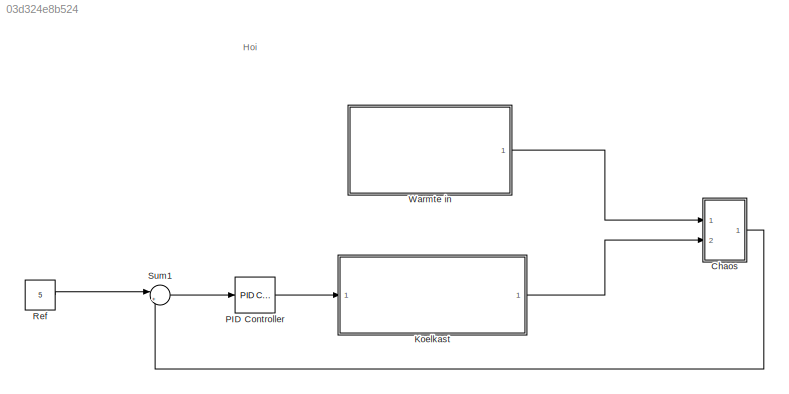
MODEL slx_03d324e8b524
KIND model
CONFIG AbsTol = auto
CONFIG EnableMultiTasking = off
CONFIG FixedStep = auto
CONFIG MaxStep = auto
CONFIG MinStep = auto
CONFIG RelTol = 1e-3
CONFIG SampleTimeConstraint = Unconstrained
CONFIG SolverName = ode4
CONFIG StartTime = 0.0
CONFIG StopTime = 10.0
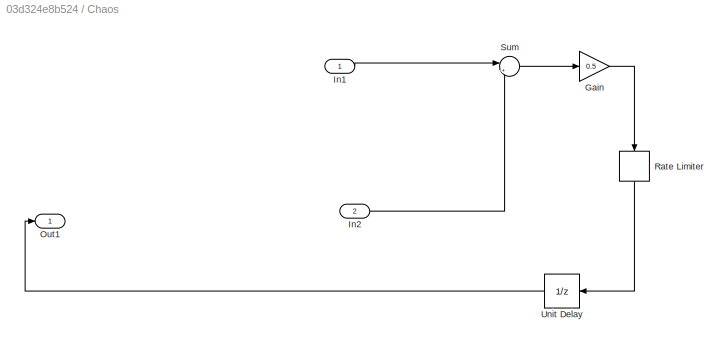
BLOCK [SubSystem] Chaos
  Ports = [2, 1]
  RequestExecContextInheritance = off
BLOCK [Gain] Chaos/Gain
  Gain = 0.5
BLOCK [Inport] Chaos/In1
BLOCK [Inport] Chaos/In2
  Port = 2
BLOCK [Outport] Chaos/Out1
BLOCK [RateLimiter] Chaos/Rate Limiter
  FallingSlewLimit = -0.2
  NameLocation = left
  RisingSlewLimit = 0.2
  SampleTimeMode = inherited
BLOCK [Sum] Chaos/Sum
  Inputs = |++
  Ports = [2, 1]
BLOCK [UnitDelay] Chaos/Unit Delay
  HasFrameUpgradeWarning = on
  InitialCondition = 11
  NameLocation = top
  SampleTime = -1
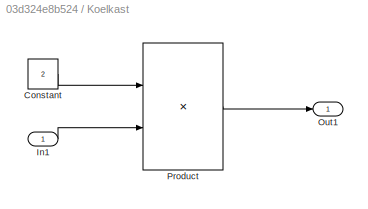
BLOCK [SubSystem] Koelkast
  Ports = [1, 1]
  RequestExecContextInheritance = off
BLOCK [Constant] Koelkast/Constant
  Value = 2
BLOCK [Inport] Koelkast/In1
BLOCK [Outport] Koelkast/Out1
BLOCK [Product] Koelkast/Product
  Ports = [2, 1]
BLOCK [Reference] PID Controller  REF=pid_lib/PID Controller
  Ports = [1, 1]
  SourceBlock = pid_lib/PID Controller
  SourceProductBaseCode = SL
  SourceType = PID 1dof
BLOCK [Constant] Ref
  Value = 5
BLOCK [Sum] Sum1
  Inputs = |+-
  Ports = [2, 1]
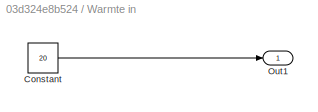
BLOCK [SubSystem] Warmte in
  Ports = [0, 1]
  RequestExecContextInheritance = off
BLOCK [Constant] Warmte in/Constant
  Value = 20
BLOCK [Outport] Warmte in/Out1
ANNOTATION (root): Hoi
LINE Chaos/Gain:1 -> Chaos/Rate Limiter:1
LINE Chaos/In1:1 -> Chaos/Sum:1
LINE Chaos/In2:1 -> Chaos/Sum:2
LINE Chaos/Rate Limiter:1 -> Chaos/Unit Delay:1
LINE Chaos/Sum:1 -> Chaos/Gain:1
LINE Chaos/Unit Delay:1 -> Chaos/Out1:1
LINE Chaos:1 -> Sum1:2
LINE Koelkast/Constant:1 -> Koelkast/Product:1
LINE Koelkast/In1:1 -> Koelkast/Product:2
LINE Koelkast/Product:1 -> Koelkast/Out1:1
LINE Koelkast:1 -> Chaos:2
LINE PID Controller:1 -> Koelkast:1
LINE Ref:1 -> Sum1:1
LINE Sum1:1 -> PID Controller:1
LINE Warmte in/Constant:1 -> Warmte in/Out1:1
LINE Warmte in:1 -> Chaos:1
